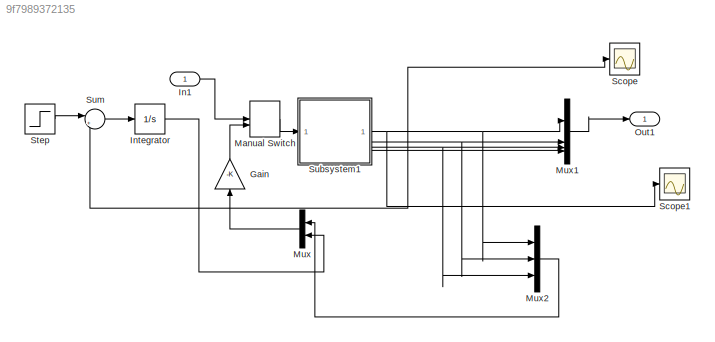
MODEL slx_9f7989372135
KIND model
CONFIG AbsTol = auto
CONFIG EnableMultiTasking = off
CONFIG FixedStep = auto
CONFIG MaxStep = auto
CONFIG MinStep = auto
CONFIG RelTol = 1e-3
CONFIG SampleTimeConstraint = Unconstrained
CONFIG SolverName = VariableStepAuto
CONFIG StartTime = 0.0
CONFIG StopTime = 2
BLOCK [Gain] Gain
  Commented = on
  Gain = -K
  Multiplication = Matrix(K*u)
  NameLocation = right
BLOCK [Inport] In1
BLOCK [Integrator] Integrator
  Commented = on
BLOCK [ManualSwitch] Manual Switch
BLOCK [Mux] Mux
  Commented = on
  DisplayOption = bar
  Inputs = 2
  NameLocation = top
BLOCK [Mux] Mux1
  DisplayOption = bar
BLOCK [Mux] Mux2
  DisplayOption = bar
  Inputs = 3
BLOCK [Outport] Out1
BLOCK [Scope] Scope
  Floating = off
  NumInputPorts = 1
  ScopeSpecificationString = Simulink.scopes.TimeScopeBlockCfg('CurrentConfiguration', extmgr.ConfigurationSet(extmgr.Configuration('Core','General UI',true),extmgr.Configuration('Core','Source UI',true),extmgr.Configuration('Sources','WiredSimulink',true),extmgr.Configuration('Visuals','Time Domain',true,'SerializedDisplays',{struct('MinYLimReal','-1.00000','MaxYLimReal','1.00000','YLabelReal','','MinYLimMag','0.00000','MaxY...<+1332ch>
BLOCK [Scope] Scope1
  Floating = off
  NumInputPorts = 1
  ScopeSpecificationString = Simulink.scopes.TimeScopeBlockCfg('CurrentConfiguration', extmgr.ConfigurationSet(extmgr.Configuration('Core','General UI',true),extmgr.Configuration('Core','Source UI',true),extmgr.Configuration('Sources','WiredSimulink',true,'DataLoggingVariableName','ScopeData1'),extmgr.Configuration('Visuals','Time Domain',true,'SerializedDisplays',{struct('MinYLimReal','-1.00000','MaxYLimReal','1.00000','YLab...<+1371ch>
BLOCK [Step] Step
  Commented = on
  SampleTime = 0
  Time = .5
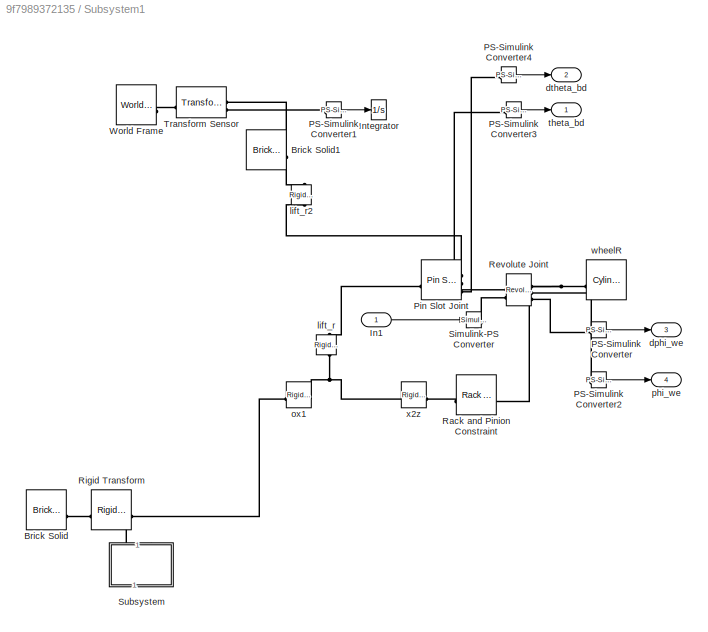
BLOCK [SubSystem] Subsystem1
BLOCK [Reference] Subsystem1/Brick Solid  REF=sm_lib/Body Elements/Brick Solid
  SourceBlock = sm_lib/Body Elements/Brick Solid
  SourceType = Brick Solid
BLOCK [Reference] Subsystem1/Brick Solid1  REF=sm_lib/Body Elements/Brick Solid
  SourceBlock = sm_lib/Body Elements/Brick Solid
  SourceType = Brick Solid
BLOCK [Inport] Subsystem1/In1
BLOCK [Integrator] Subsystem1/Integrator
  Commented = on
BLOCK [Reference] Subsystem1/PS-Simulink Converter  REF=nesl_utility/PS-Simulink
Converter
  SourceBlock = nesl_utility/PS-Simulink\nConverter
  SourceType = PS-Simulink\nConverter
BLOCK [Reference] Subsystem1/PS-Simulink Converter1  REF=nesl_utility/PS-Simulink
Converter
  Commented = on
  SourceBlock = nesl_utility/PS-Simulink\nConverter
  SourceType = PS-Simulink\nConverter
BLOCK [Reference] Subsystem1/PS-Simulink Converter2  REF=nesl_utility/PS-Simulink
Converter
  SourceBlock = nesl_utility/PS-Simulink\nConverter
  SourceType = PS-Simulink\nConverter
BLOCK [Reference] Subsystem1/PS-Simulink Converter3  REF=nesl_utility/PS-Simulink
Converter
  SourceBlock = nesl_utility/PS-Simulink\nConverter
  SourceType = PS-Simulink\nConverter
BLOCK [Reference] Subsystem1/PS-Simulink Converter4  REF=nesl_utility/PS-Simulink
Converter
  SourceBlock = nesl_utility/PS-Simulink\nConverter
  SourceType = PS-Simulink\nConverter
BLOCK [Reference] Subsystem1/Pin Slot Joint  REF=sm_lib/Joints/Pin Slot Joint
  SourceBlock = sm_lib/Joints/Pin Slot Joint
  SourceType = Pin Slot Joint
BLOCK [Reference] Subsystem1/Rack and Pinion Constraint  REF=sm_lib/Gears and
Couplings/Gears/Rack and Pinion
Constraint
  NameLocation = top
  SourceBlock = sm_lib/Gears and\nCouplings/Gears/Rack and Pinion\nConstraint
  SourceType = Rack and Pinion\nConstraint
BLOCK [Reference] Subsystem1/Revolute Joint  REF=sm_lib/Joints/Revolute Joint
  SourceBlock = sm_lib/Joints/Revolute Joint
  SourceType = Revolute Joint
BLOCK [Reference] Subsystem1/Rigid Transform  REF=sm_lib/Frames and
Transforms/Rigid
Transform
  NameLocation = top
  SourceBlock = sm_lib/Frames and\nTransforms/Rigid\nTransform
  SourceType = Rigid\nTransform
BLOCK [Reference] Subsystem1/Simulink-PS Converter  REF=nesl_utility/Simulink-PS
Converter
  SourceBlock = nesl_utility/Simulink-PS\nConverter
  SourceType = Simulink-PS\nConverter
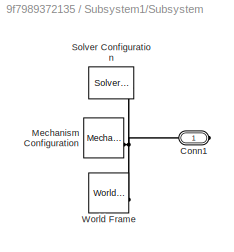
BLOCK [SubSystem] Subsystem1/Subsystem
  NameLocation = right
BLOCK [PMIOPort] Subsystem1/Subsystem/Conn1
  Side = Right
BLOCK [Reference] Subsystem1/Subsystem/Mechanism Configuration  REF=sm_lib/Utilities/Mechanism
Configuration
  SourceBlock = sm_lib/Utilities/Mechanism\nConfiguration
  SourceType = Mechanism\nConfiguration
BLOCK [Reference] Subsystem1/Subsystem/Solver Configuration  REF=nesl_utility/Solver
Configuration
  SourceBlock = nesl_utility/Solver\nConfiguration
  SourceType = Solver\nConfiguration
BLOCK [Reference] Subsystem1/Subsystem/World Frame  REF=sm_lib/Frames and
Transforms/World Frame
  SourceBlock = sm_lib/Frames and\nTransforms/World Frame
  SourceType = World Frame
BLOCK [Reference] Subsystem1/Transform Sensor  REF=sm_lib/Frames and
Transforms/Transform
Sensor
  SourceBlock = sm_lib/Frames and\nTransforms/Transform\nSensor
  SourceType = Transform\nSensor
BLOCK [Reference] Subsystem1/World Frame  REF=sm_lib/Frames and
Transforms/World Frame
  SourceBlock = sm_lib/Frames and\nTransforms/World Frame
  SourceType = World Frame
BLOCK [Outport] Subsystem1/dphi_we
  Port = 3
BLOCK [Outport] Subsystem1/dtheta_bd
  Port = 2
BLOCK [Reference] Subsystem1/lift_r  REF=sm_lib/Frames and
Transforms/Rigid
Transform
  NameLocation = right
  SourceBlock = sm_lib/Frames and\nTransforms/Rigid\nTransform
  SourceType = Rigid\nTransform
BLOCK [Reference] Subsystem1/lift_r2  REF=sm_lib/Frames and
Transforms/Rigid
Transform
  NameLocation = right
  SourceBlock = sm_lib/Frames and\nTransforms/Rigid\nTransform
  SourceType = Rigid\nTransform
BLOCK [Reference] Subsystem1/ox1  REF=sm_lib/Frames and
Transforms/Rigid
Transform
  SourceBlock = sm_lib/Frames and\nTransforms/Rigid\nTransform
  SourceType = Rigid\nTransform
BLOCK [Outport] Subsystem1/phi_we
  Port = 4
BLOCK [Outport] Subsystem1/theta_bd
BLOCK [Reference] Subsystem1/wheelR  REF=sm_lib/Body Elements/Cylindrical Solid
  NameLocation = top
  SourceBlock = sm_lib/Body Elements/Cylindrical Solid
  SourceType = Cylindrical Solid
BLOCK [Reference] Subsystem1/x2z  REF=sm_lib/Frames and
Transforms/Rigid
Transform
  SourceBlock = sm_lib/Frames and\nTransforms/Rigid\nTransform
  SourceType = Rigid\nTransform
BLOCK [Sum] Sum
  Commented = on
  Inputs = |+-
LINE Gain:1 -> Manual Switch:2
LINE In1:1 -> Manual Switch:1
LINE Integrator:1 -> Mux:2
LINE Manual Switch:1 -> Subsystem1:1
LINE Mux1:1 -> Out1:1
LINE Mux2:1 -> Mux:1
LINE Mux:1 -> Gain:1
LINE Step:1 -> Sum:1
LINE Subsystem1/In1:1 -> Subsystem1/Simulink-PS Converter:1
LINE Subsystem1/PS-Simulink Converter1:1 -> Subsystem1/Integrator:1
LINE Subsystem1/PS-Simulink Converter2:1 -> Subsystem1/phi_we:1
LINE Subsystem1/PS-Simulink Converter3:1 -> Subsystem1/theta_bd:1
LINE Subsystem1/PS-Simulink Converter4:1 -> Subsystem1/dtheta_bd:1
LINE Subsystem1/PS-Simulink Converter:1 -> Subsystem1/dphi_we:1
NET Subsystem1:1 -> Mux1:1, Mux2:1, Scope1:1
NET Subsystem1:2 -> Mux1:2, Mux2:2
NET Subsystem1:3 -> Mux1:3, Mux2:3, Scope:1, Sum:2
LINE Subsystem1:4 -> Mux1:4
LINE Sum:1 -> Integrator:1
PNET net1: Subsystem1/Brick Solid1:RConn1 -- Subsystem1/Transform Sensor:RConn1 -- Subsystem1/lift_r2:RConn1
PLINE Subsystem1/Brick Solid:RConn1 -- Subsystem1/Rigid Transform:RConn1
PLINE Subsystem1/PS-Simulink Converter1:LConn1 -- Subsystem1/Transform Sensor:RConn2
PLINE Subsystem1/PS-Simulink Converter2:LConn1 -- Subsystem1/Revolute Joint:RConn2
PLINE Subsystem1/PS-Simulink Converter3:LConn1 -- Subsystem1/Pin Slot Joint:RConn2
PLINE Subsystem1/PS-Simulink Converter4:LConn1 -- Subsystem1/Pin Slot Joint:RConn3
PLINE Subsystem1/PS-Simulink Converter:LConn1 -- Subsystem1/Revolute Joint:RConn3
PLINE Subsystem1/Pin Slot Joint:LConn1 -- Subsystem1/lift_r:RConn1
PNET net2: Subsystem1/Pin Slot Joint:RConn1 -- Subsystem1/Revolute Joint:LConn1 -- Subsystem1/lift_r2:LConn1
PNET net3: Subsystem1/Rack and Pinion Constraint:LConn1 -- Subsystem1/Revolute Joint:RConn1 -- Subsystem1/wheelR:RConn1
PLINE Subsystem1/Rack and Pinion Constraint:RConn1 -- Subsystem1/x2z:RConn1
PLINE Subsystem1/Revolute Joint:LConn2 -- Subsystem1/Simulink-PS Converter:RConn1
PNET net4: Subsystem1/Rigid Transform:LConn1 -- Subsystem1/Subsystem:RConn1 -- Subsystem1/ox1:LConn1
PNET net5: Subsystem1/Subsystem/Conn1:RConn1 -- Subsystem1/Subsystem/Mechanism Configuration:RConn1 -- Subsystem1/Subsystem/Solver Configuration:RConn1 -- Subsystem1/Subsystem/World Frame:RConn1
PLINE Subsystem1/Transform Sensor:LConn1 -- Subsystem1/World Frame:RConn1
PNET net6: Subsystem1/lift_r:LConn1 -- Subsystem1/ox1:RConn1 -- Subsystem1/x2z:LConn1
note: NET lines group one-source signal fan-out (src -> all destinations, sorted); 1:1 wires keep LINE; PNET lines group multi-terminal physical nets as a canonical sorted terminal list (undirected conserving connections); 2-terminal nets keep the pairwise PLINE form
